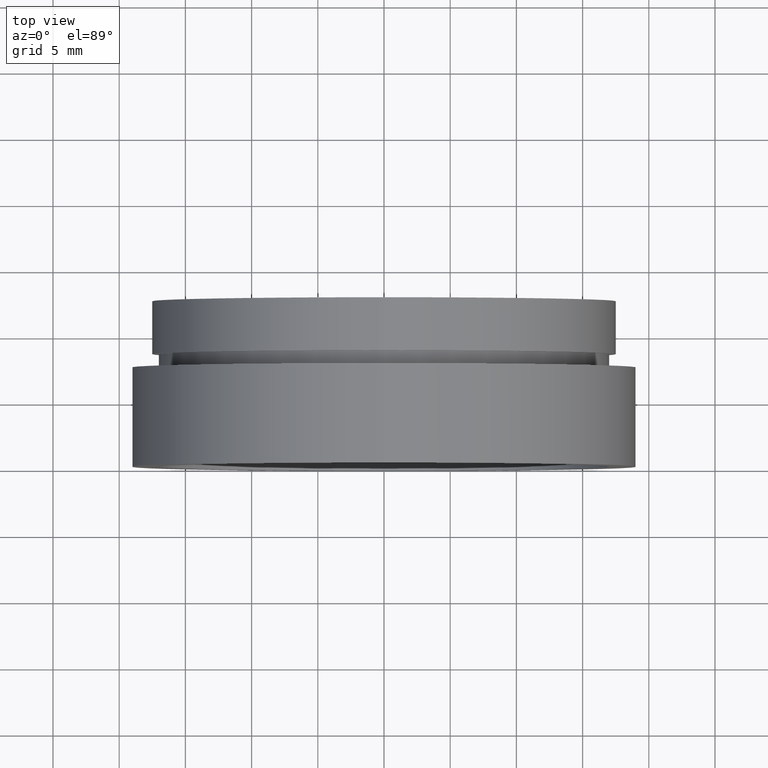
[diagram: clean part render]
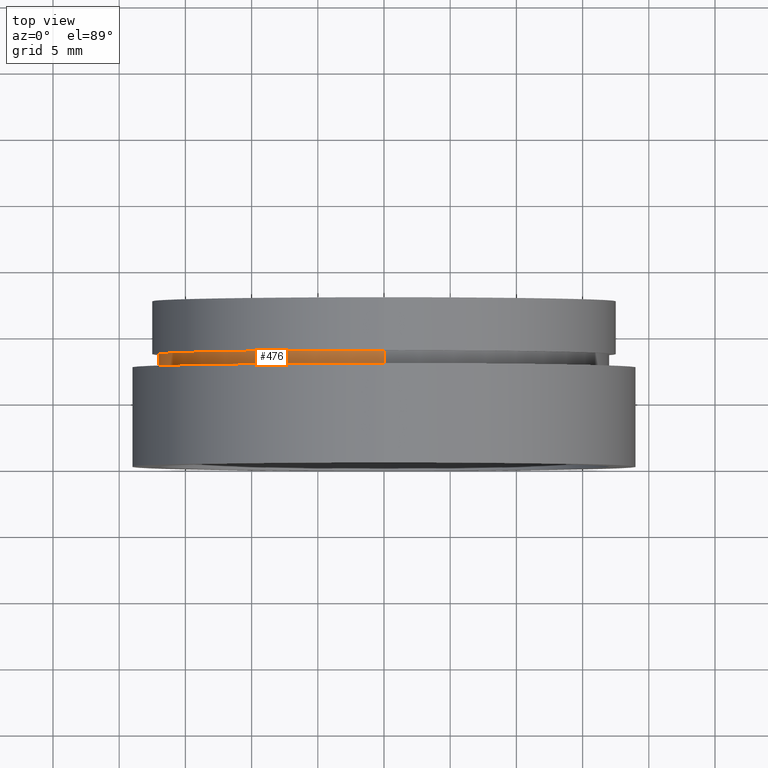
[diagram: same view with one face highlighted and labeled with its STEP entity id]
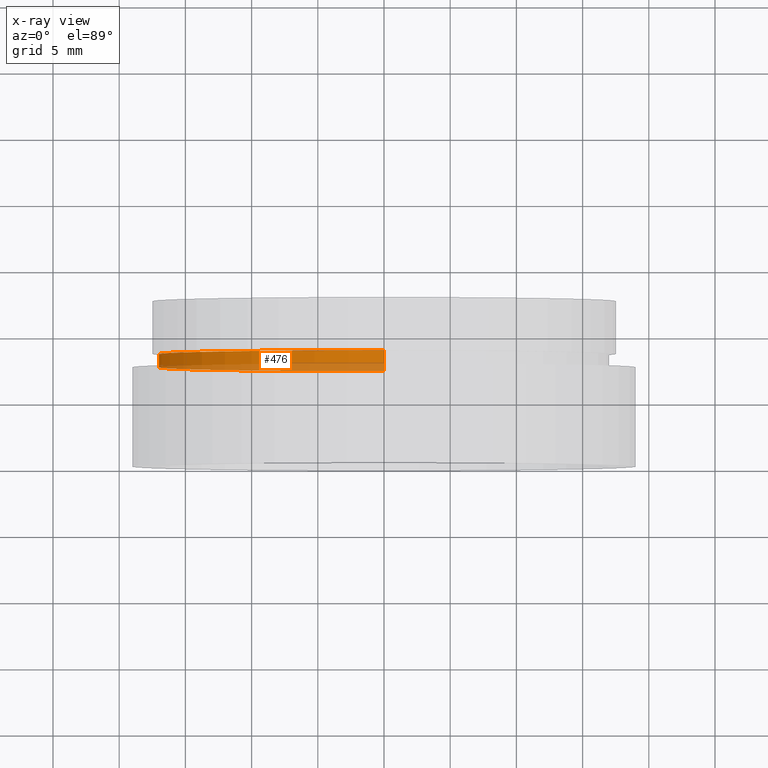
[diagram: x-ray of the same camera — body ghosted, the highlighted face saturated]
A machine part, top view. The second image highlights one B-rep face of the part: STEP entity #476.
The next image is the same camera in x-ray: the body ghosted, the highlighted face saturated — about 32% of this face is hidden behind the body in this view.
In plain terms, the highlighted cylindrical surface (partial cylindrical patch) has radius 17 mm, axis along (-0, 1, -0).
Its self-contained STEP definition (entity closure, byte-faithful):
#24 = DIRECTION ( 'NONE',  ( -0.0000000000000000000, 1.000000000000000000, -0.0000000000000000000 ) ) ;
#25 = ORIENTED_EDGE ( 'NONE', *, *, #79, .T. ) ;
#39 = VERTEX_POINT ( 'NONE', #261 ) ;
#49 = EDGE_CURVE ( 'NONE', #621, #420, #550, .T. ) ;
#79 = EDGE_CURVE ( 'NONE', #420, #313, #577, .T. ) ;
#111 = LINE ( 'NONE', #128, #307 ) ;
#112 = DIRECTION ( 'NONE',  ( 0.0000000000000000000, 0.0000000000000000000, 1.000000000000000000 ) ) ;
#128 = CARTESIAN_POINT ( 'NONE',  ( 2.081899558550502600E-015, 161.3761669434274500, -17.00000000000001800 ) ) ;
#130 = DIRECTION ( 'NONE',  ( -0.0000000000000000000, 1.000000000000000000, -0.0000000000000000000 ) ) ;
#157 = CYLINDRICAL_SURFACE ( 'NONE', #366, 17.00000000000001800 ) ;
#181 = DIRECTION ( 'NONE',  ( -0.0000000000000000000, 1.000000000000000000, -0.0000000000000000000 ) ) ;
#188 = VECTOR ( 'NONE', #322, 1000.000000000000000 ) ;
#189 = EDGE_CURVE ( 'NONE', #39, #313, #253, .T. ) ;
#210 = DIRECTION ( 'NONE',  ( 0.0000000000000000000, 0.0000000000000000000, 1.000000000000000000 ) ) ;
#213 = EDGE_LOOP ( 'NONE', ( #560, #272, #25, #453 ) ) ;
#234 = DIRECTION ( 'NONE',  ( 0.0000000000000000000, 0.0000000000000000000, 1.000000000000000000 ) ) ;
#253 = CIRCLE ( 'NONE', #298, 17.00000000000001800 ) ;
#261 = CARTESIAN_POINT ( 'NONE',  ( 2.081899558550502600E-015, 8.499999999999980500, -17.00000000000001800 ) ) ;
#272 = ORIENTED_EDGE ( 'NONE', *, *, #49, .T. ) ;
#298 = AXIS2_PLACEMENT_3D ( 'NONE', #432, #130, #234 ) ;
#307 = VECTOR ( 'NONE', #181, 1000.000000000000000 ) ;
#312 = CARTESIAN_POINT ( 'NONE',  ( 2.081899558550502600E-015, 7.499999999999978700, -17.00000000000001800 ) ) ;
#313 = VERTEX_POINT ( 'NONE', #385 ) ;
#314 = CARTESIAN_POINT ( 'NONE',  ( 0.0000000000000000000, 161.3761669434274500, 17.00000000000001800 ) ) ;
#321 = EDGE_CURVE ( 'NONE', #621, #39, #111, .T. ) ;
#322 = DIRECTION ( 'NONE',  ( -0.0000000000000000000, 1.000000000000000000, -0.0000000000000000000 ) ) ;
#366 = AXIS2_PLACEMENT_3D ( 'NONE', #624, #538, #210 ) ;
#385 = CARTESIAN_POINT ( 'NONE',  ( 0.0000000000000000000, 8.499999999999980500, 17.00000000000001800 ) ) ;
#420 = VERTEX_POINT ( 'NONE', #483 ) ;
#432 = CARTESIAN_POINT ( 'NONE',  ( 0.0000000000000000000, 8.499999999999980500, 0.0000000000000000000 ) ) ;
#453 = ORIENTED_EDGE ( 'NONE', *, *, #189, .F. ) ;
#469 = AXIS2_PLACEMENT_3D ( 'NONE', #551, #24, #112 ) ;
#476 = ADVANCED_FACE ( 'NONE', ( #594 ), #157, .T. ) ;
#483 = CARTESIAN_POINT ( 'NONE',  ( 0.0000000000000000000, 7.499999999999978700, 17.00000000000001800 ) ) ;
#538 = DIRECTION ( 'NONE',  ( -0.0000000000000000000, 1.000000000000000000, -0.0000000000000000000 ) ) ;
#550 = CIRCLE ( 'NONE', #469, 17.00000000000001800 ) ;
#551 = CARTESIAN_POINT ( 'NONE',  ( 0.0000000000000000000, 7.499999999999978700, 0.0000000000000000000 ) ) ;
#560 = ORIENTED_EDGE ( 'NONE', *, *, #321, .F. ) ;
#577 = LINE ( 'NONE', #314, #188 ) ;
#594 = FACE_OUTER_BOUND ( 'NONE', #213, .T. ) ;
#621 = VERTEX_POINT ( 'NONE', #312 ) ;
#624 = CARTESIAN_POINT ( 'NONE',  ( 0.0000000000000000000, 161.3761669434274500, 0.0000000000000000000 ) ) ;